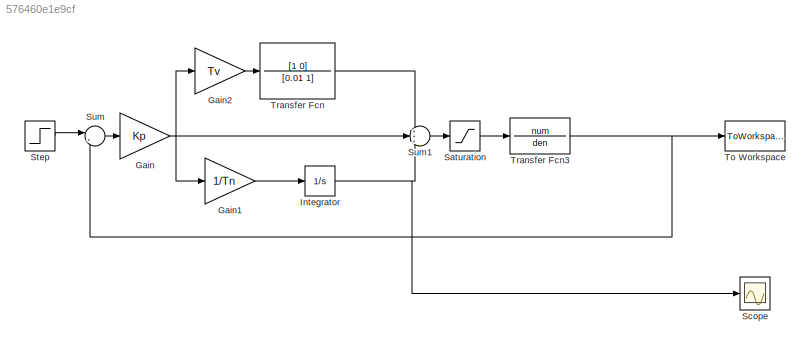
MODEL slx_576460e1e9cf
KIND model
CONFIG AbsTol = 1e-4
CONFIG EnableMultiTasking = off
CONFIG FixedStep = 1e-2
CONFIG MaxStep = auto
CONFIG MinStep = auto
CONFIG RelTol = 1e-4
CONFIG SampleTimeConstraint = Unconstrained
CONFIG SolverName = ode45
CONFIG StartTime = 0.0
CONFIG StopTime = 10.0
BLOCK [Gain] Gain
  Gain = Kp
BLOCK [Gain] Gain1
  Gain = 1/Tn
BLOCK [Gain] Gain2
  Gain = Tv
BLOCK [Integrator] Integrator
  LimitOutput = on
  LowerSaturationLimit = lower_limit
  UpperSaturationLimit = upper_limit
BLOCK [Saturate] Saturation
  LowerLimit = lower_limit
  UpperLimit = upper_limit
BLOCK [Scope] Scope
  Floating = off
  NumInputPorts = 2
  ScopeSpecificationString = Simulink.scopes.TimeScopeBlockCfg('CurrentConfiguration', extmgr.ConfigurationSet(extmgr.Configuration('Core','General UI',true),extmgr.Configuration('Core','Source UI',true),extmgr.Configuration('Sources','WiredSimulink',true),extmgr.Configuration('Visuals','Time Domain',true,'SerializedDisplays',{struct('MinYLimReal','-6.25','MaxYLimReal','6.25','YLabelReal','','MinYLimMag','0.00000','MaxYLimMag...<+1443ch>
BLOCK [Step] Step
  SampleTime = 0
  Time = 0
BLOCK [Sum] Sum
  Inputs = |+-
BLOCK [Sum] Sum1
  Inputs = +++
BLOCK [ToWorkspace] To Workspace
  FixptAsFi = on
  MaxDataPoints = inf
  SampleTime = -1
  SaveFormat = Structure With Time
  VariableName = simout
BLOCK [TransferFcn] Transfer Fcn
  Denominator = [0.01 1]
  Numerator = [1 0]
BLOCK [TransferFcn] Transfer Fcn3
  Denominator = den
  Numerator = num
LINE Gain1:1 -> Integrator:1
LINE Gain2:1 -> Transfer Fcn:1
NET Gain:1 -> Gain1:1, Gain2:1, Sum1:2
NET Integrator:1 -> Scope:1, Sum1:3
LINE Saturation:1 -> Transfer Fcn3:1
LINE Step:1 -> Sum:1
LINE Sum1:1 -> Saturation:1
LINE Sum:1 -> Gain:1
NET Transfer Fcn3:1 -> Sum:2, To Workspace:1
LINE Transfer Fcn:1 -> Sum1:1
note: NET lines group one-source signal fan-out (src -> all destinations, sorted); 1:1 wires keep LINE
